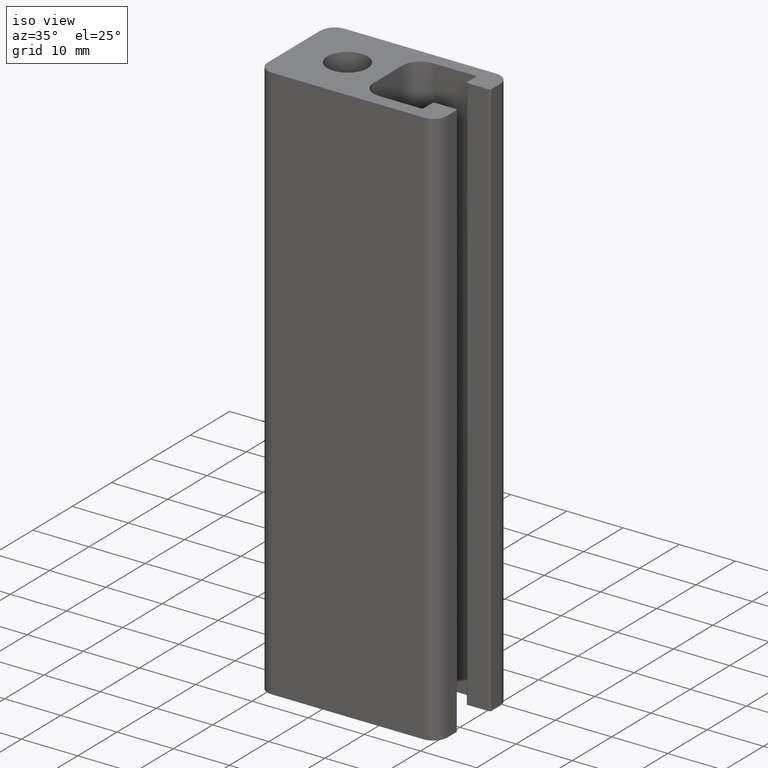
[diagram: clean part render]
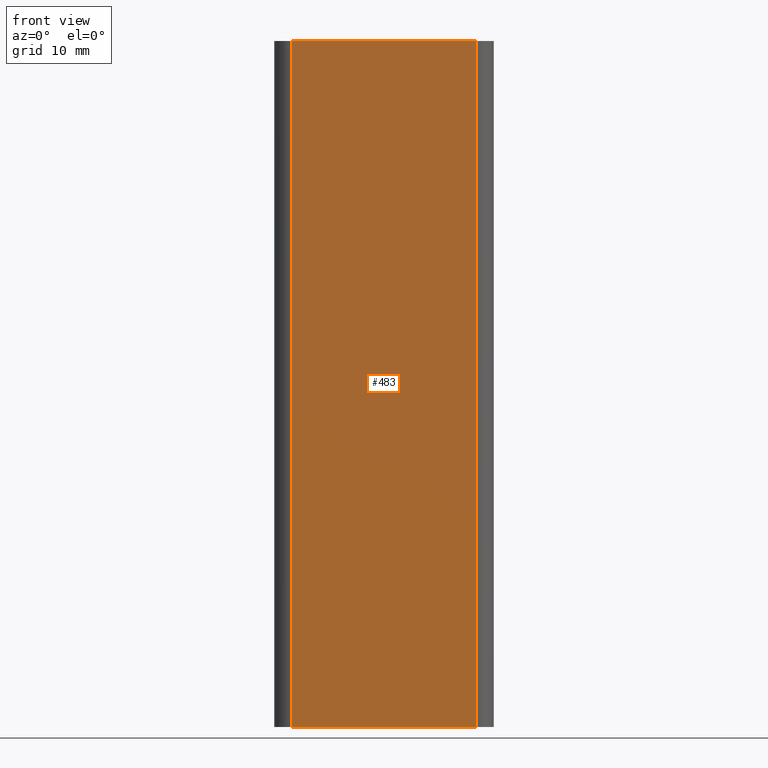
[diagram: tour spotlight — one face highlighted and labeled with its STEP entity id]
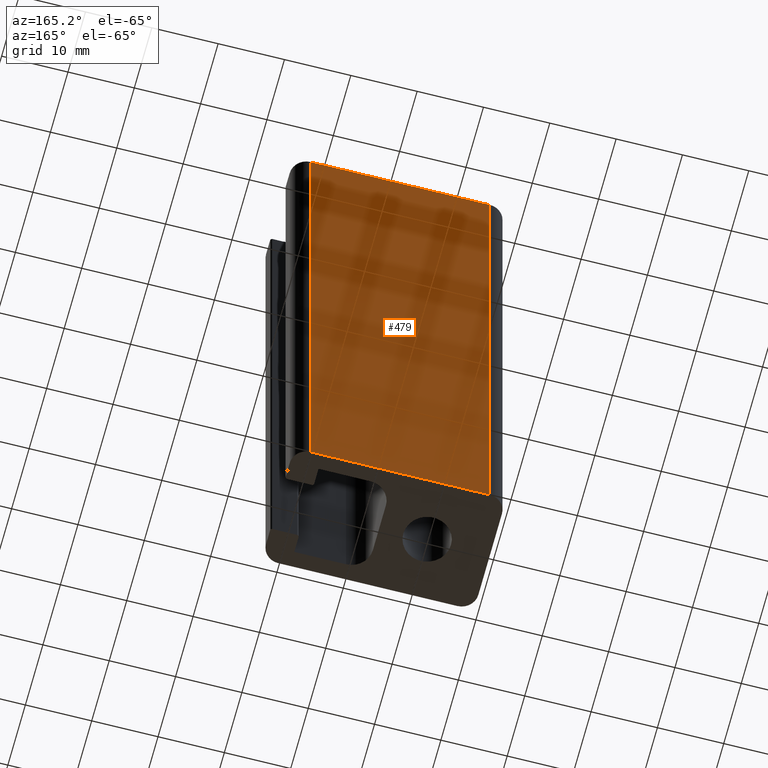
[diagram: tour spotlight — one face highlighted and labeled with its STEP entity id]
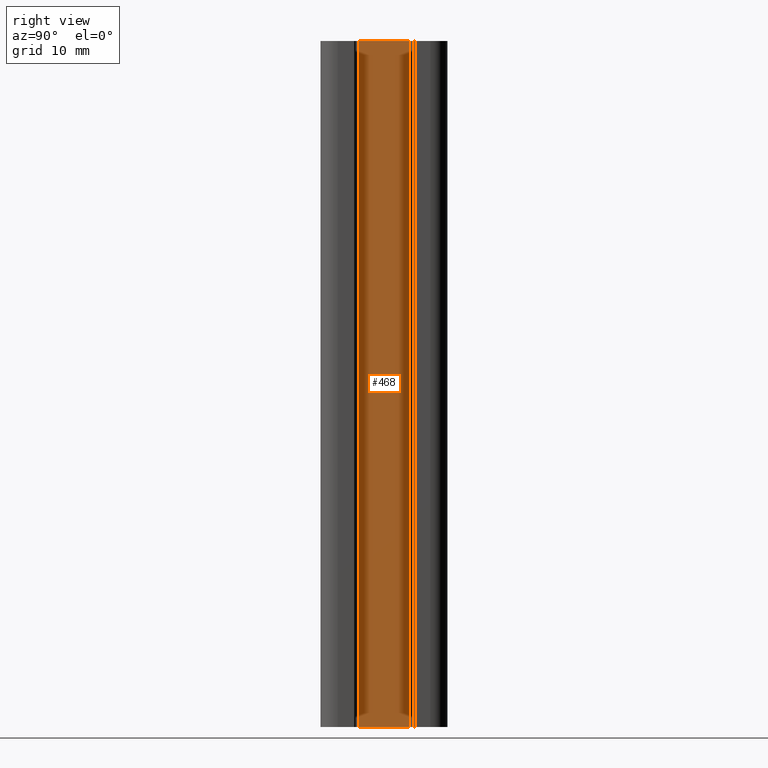
[diagram: tour spotlight — one face highlighted and labeled with its STEP entity id]
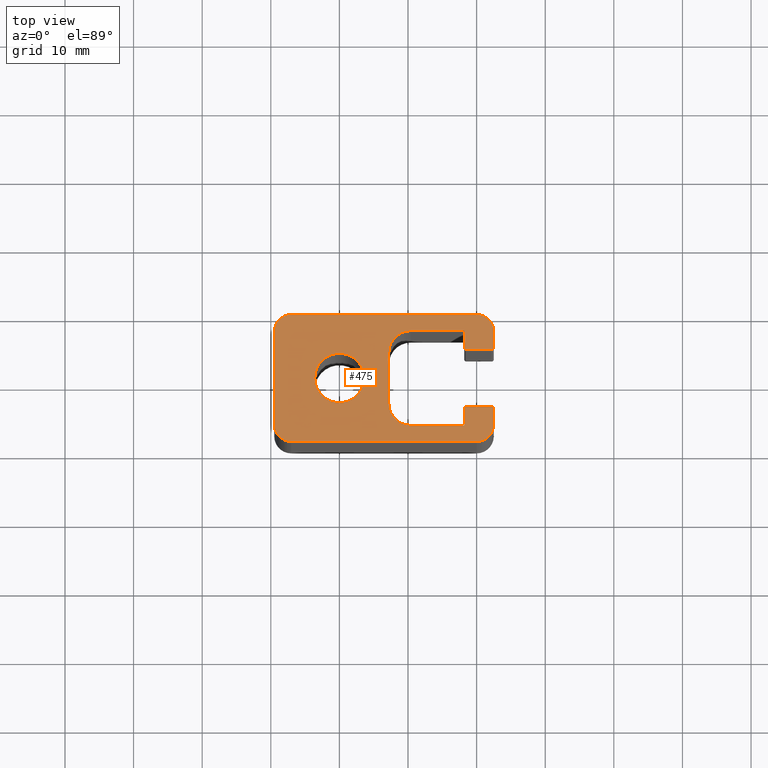
[diagram: tour spotlight — one face highlighted and labeled with its STEP entity id]
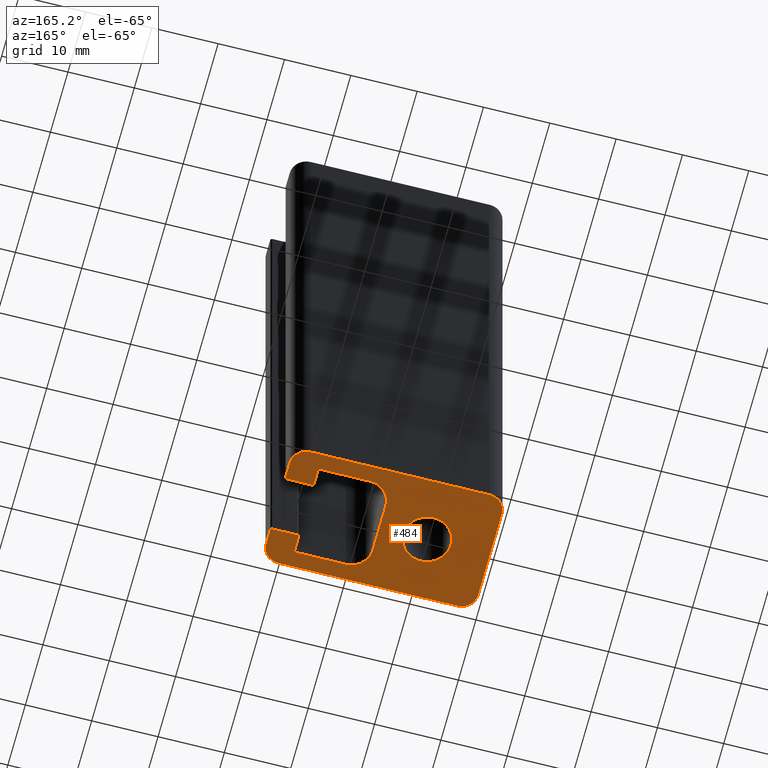
[diagram: tour spotlight — one face highlighted and labeled with its STEP entity id]
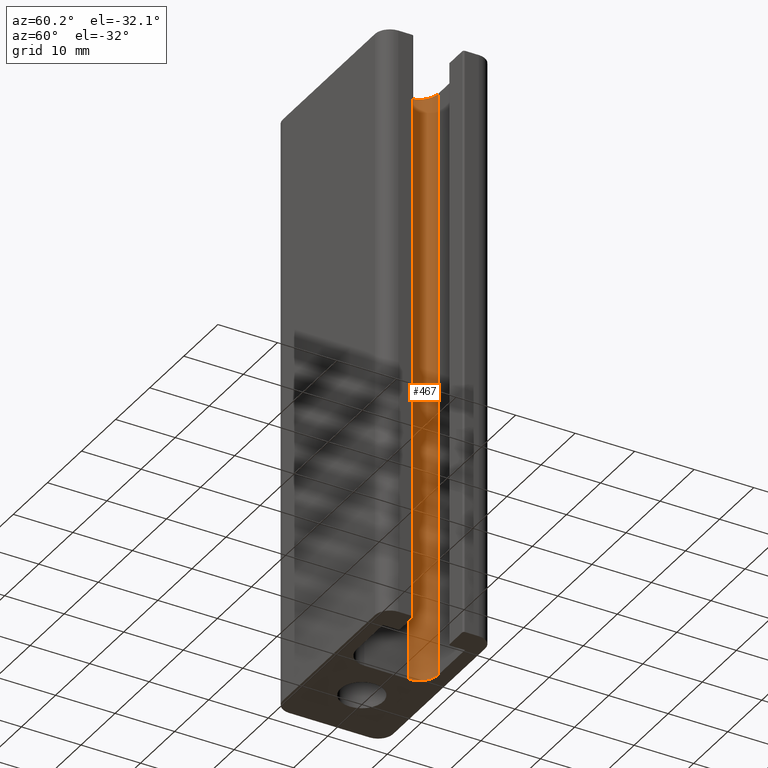
[diagram: tour spotlight — one face highlighted and labeled with its STEP entity id]
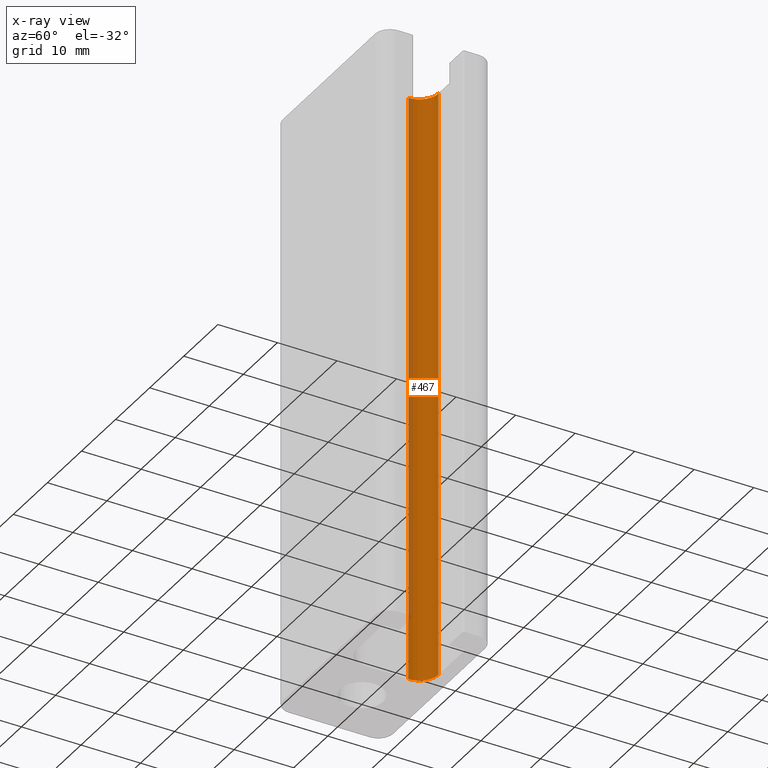
[diagram: x-ray of the same camera — body ghosted, this tour face saturated]
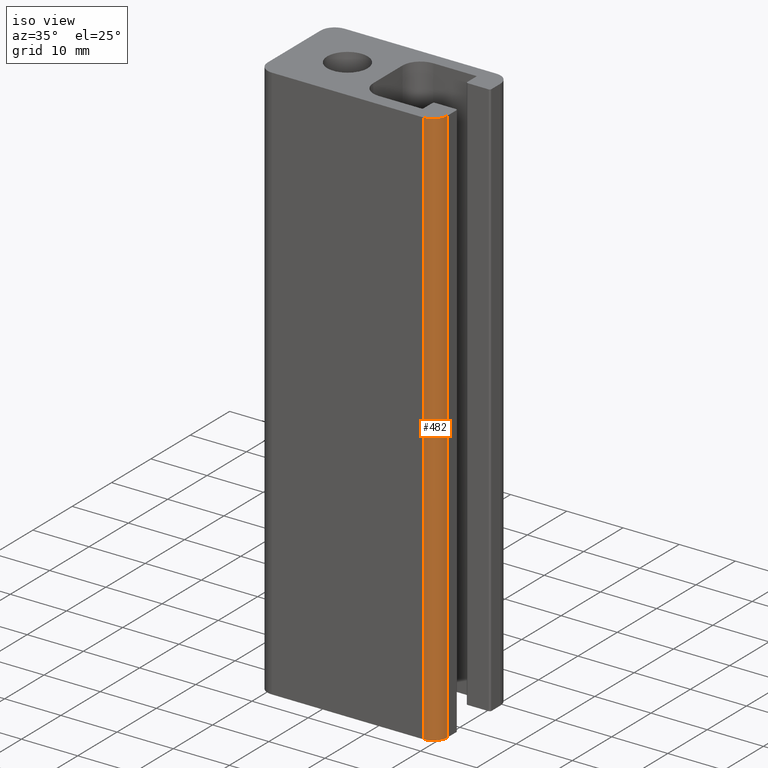
[diagram: tour spotlight — one face highlighted and labeled with its STEP entity id]
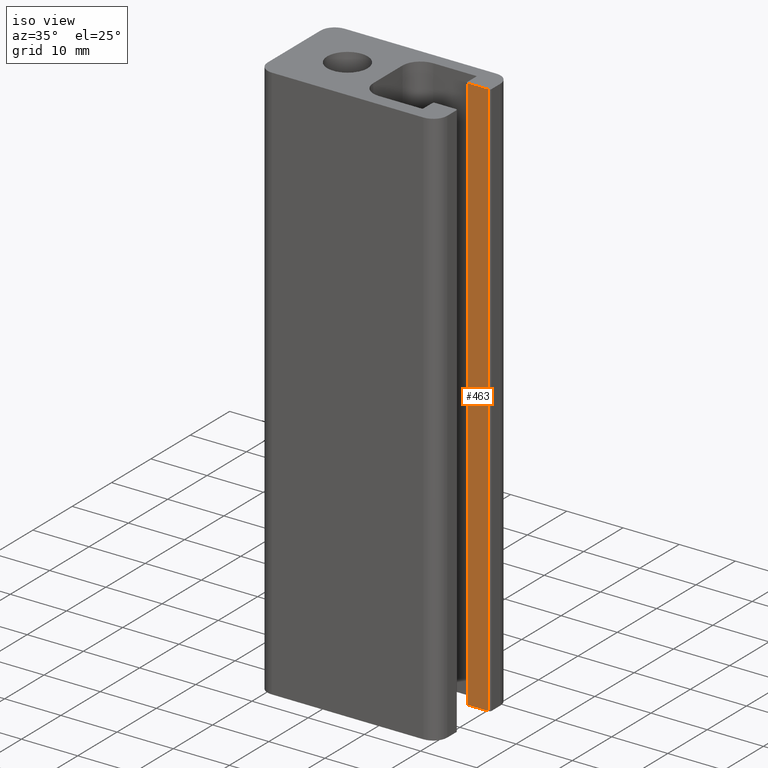
[diagram: tour spotlight — one face highlighted and labeled with its STEP entity id]
A machine part: a face-by-face anatomy tour. The part has 25 B-rep faces; the first image is the clean iso view, then the 8 largest visible faces are spotlighted one at a time (largest first), each with its STEP entity span.

Face 1 — front view, entity #483. In plain terms, the highlighted planar face has unit normal (0, -1, 0).
Definition (entity closure, byte-faithful):
#27=PLANE('',#532);
#62=LINE('',#781,#108);
#65=LINE('',#790,#111);
#73=LINE('',#811,#119);
#74=LINE('',#814,#120);
#108=VECTOR('',#635,27.);
#111=VECTOR('',#644,100.);
#119=VECTOR('',#668,100.);
#120=VECTOR('',#673,27.);
#147=FACE_OUTER_BOUND('',#174,.T.);
#174=EDGE_LOOP('',(#422,#423,#424,#425));
#235=VERTEX_POINT('',#778);
#236=VERTEX_POINT('',#780);
#239=VERTEX_POINT('',#788);
#244=VERTEX_POINT('',#810);
#295=EDGE_CURVE('',#236,#235,#62,.T.);
#300=EDGE_CURVE('',#239,#235,#65,.T.);
#310=EDGE_CURVE('',#244,#236,#73,.T.);
#312=EDGE_CURVE('',#244,#239,#74,.T.);
#422=ORIENTED_EDGE('',*,*,#295,.T.);
#423=ORIENTED_EDGE('',*,*,#300,.F.);
#424=ORIENTED_EDGE('',*,*,#312,.F.);
#425=ORIENTED_EDGE('',*,*,#310,.T.);
#483=ADVANCED_FACE('',(#147),#27,.T.);
#532=AXIS2_PLACEMENT_3D('',#813,#671,#672);
#635=DIRECTION('',(-1.,-1.64477485129653E-16,0.));
#644=DIRECTION('',(0.,0.,1.));
#668=DIRECTION('',(0.,0.,1.));
#671=DIRECTION('center_axis',(1.64477485129653E-16,-1.,0.));
#672=DIRECTION('ref_axis',(1.,1.77635683940025E-16,0.));
#673=DIRECTION('',(-1.,-1.64477485129653E-16,0.));
#778=CARTESIAN_POINT('',(-7.,-9.25,100.));
#780=CARTESIAN_POINT('',(20.,-9.25,100.));
#781=CARTESIAN_POINT('',(-0.249999999999997,-9.25,100.));
#788=CARTESIAN_POINT('',(-7.,-9.25,0.));
#790=CARTESIAN_POINT('',(-7.,-9.25,0.));
#810=CARTESIAN_POINT('',(20.,-9.25,0.));
#811=CARTESIAN_POINT('',(20.,-9.25,0.));
#813=CARTESIAN_POINT('Origin',(-7.,-9.25,0.));
#814=CARTESIAN_POINT('',(-0.249999999999997,-9.25,0.));

Face 2 — auxiliary view, entity #479. In plain terms, the highlighted planar face has unit normal (0, 1, 0).
Definition (entity closure, byte-faithful):
#25=PLANE('',#526);
#60=LINE('',#773,#106);
#68=LINE('',#797,#114);
#69=LINE('',#801,#115);
#70=LINE('',#802,#116);
#106=VECTOR('',#629,27.);
#114=VECTOR('',#651,100.);
#115=VECTOR('',#656,100.);
#116=VECTOR('',#657,27.);
#143=FACE_OUTER_BOUND('',#170,.T.);
#170=EDGE_LOOP('',(#406,#407,#408,#409));
#231=VERTEX_POINT('',#770);
#232=VERTEX_POINT('',#772);
#241=VERTEX_POINT('',#796);
#242=VERTEX_POINT('',#800);
#291=EDGE_CURVE('',#232,#231,#60,.T.);
#303=EDGE_CURVE('',#241,#232,#68,.T.);
#305=EDGE_CURVE('',#242,#231,#69,.T.);
#306=EDGE_CURVE('',#241,#242,#70,.T.);
#406=ORIENTED_EDGE('',*,*,#291,.T.);
#407=ORIENTED_EDGE('',*,*,#305,.F.);
#408=ORIENTED_EDGE('',*,*,#306,.F.);
#409=ORIENTED_EDGE('',*,*,#303,.T.);
#479=ADVANCED_FACE('',(#143),#25,.T.);
#526=AXIS2_PLACEMENT_3D('',#799,#654,#655);
#629=DIRECTION('',(1.,-1.2335811384724E-16,0.));
#651=DIRECTION('',(0.,0.,1.));
#654=DIRECTION('center_axis',(1.2335811384724E-16,1.,0.));
#655=DIRECTION('ref_axis',(-1.,1.77635683940025E-16,0.));
#656=DIRECTION('',(0.,0.,1.));
#657=DIRECTION('',(1.,-1.2335811384724E-16,0.));
#770=CARTESIAN_POINT('',(20.,9.25,100.));
#772=CARTESIAN_POINT('',(-7.,9.25,100.));
#773=CARTESIAN_POINT('',(13.25,9.25,100.));
#796=CARTESIAN_POINT('',(-7.,9.25,0.));
#797=CARTESIAN_POINT('',(-7.,9.25,0.));
#799=CARTESIAN_POINT('Origin',(20.,9.25,0.));
#800=CARTESIAN_POINT('',(20.,9.25,0.));
#801=CARTESIAN_POINT('',(20.,9.25,0.));
#802=CARTESIAN_POINT('',(13.25,9.25,0.));

Face 3 — right view, entity #468. In plain terms, the highlighted planar face has unit normal (-1, 0, 0).
Definition (entity closure, byte-faithful):
#18=PLANE('',#505);
#43=LINE('',#728,#89);
#44=LINE('',#732,#90);
#45=LINE('',#734,#91);
#46=LINE('',#735,#92);
#89=VECTOR('',#584,100.);
#90=VECTOR('',#589,7.4);
#91=VECTOR('',#590,100.);
#92=VECTOR('',#591,7.4);
#132=FACE_OUTER_BOUND('',#158,.T.);
#158=EDGE_LOOP('',(#343,#344,#345,#346));
#217=VERTEX_POINT('',#725);
#218=VERTEX_POINT('',#727);
#219=VERTEX_POINT('',#731);
#220=VERTEX_POINT('',#733);
#268=EDGE_CURVE('',#218,#217,#43,.T.);
#270=EDGE_CURVE('',#219,#217,#44,.T.);
#271=EDGE_CURVE('',#220,#219,#45,.T.);
#272=EDGE_CURVE('',#218,#220,#46,.T.);
#343=ORIENTED_EDGE('',*,*,#270,.F.);
#344=ORIENTED_EDGE('',*,*,#271,.F.);
#345=ORIENTED_EDGE('',*,*,#272,.F.);
#346=ORIENTED_EDGE('',*,*,#268,.T.);
#468=ADVANCED_FACE('',(#132),#18,.F.);
#505=AXIS2_PLACEMENT_3D('',#730,#587,#588);
#584=DIRECTION('',(0.,0.,1.));
#587=DIRECTION('center_axis',(-1.,1.73119776772293E-12,0.));
#588=DIRECTION('ref_axis',(0.,0.,1.));
#589=DIRECTION('',(1.73119776772293E-12,1.,0.));
#590=DIRECTION('',(0.,0.,1.));
#591=DIRECTION('',(-1.73119776772293E-12,-1.,0.));
#725=CARTESIAN_POINT('',(7.20000000001281,3.7,100.));
#727=CARTESIAN_POINT('',(7.20000000001281,3.7,0.));
#728=CARTESIAN_POINT('',(7.20000000001281,3.7,0.));
#730=CARTESIAN_POINT('Origin',(7.2,-3.7,0.));
#731=CARTESIAN_POINT('',(7.2,-3.7,100.));
#732=CARTESIAN_POINT('',(7.2000000000032,-1.85000000000061,100.));
#733=CARTESIAN_POINT('',(7.2,-3.7,0.));
#734=CARTESIAN_POINT('',(7.2,-3.7,0.));
#735=CARTESIAN_POINT('',(7.2000000000032,-1.85000000000061,0.));

Face 4 — top view, entity #475. In plain terms, the highlighted planar face has unit normal (0, 0, 1).
Definition (entity closure, byte-faithful):
#23=PLANE('',#516);
#33=LINE('',#702,#79);
#37=LINE('',#714,#83);
#40=LINE('',#720,#86);
#44=LINE('',#732,#90);
#48=LINE('',#744,#94);
#51=LINE('',#750,#97);
#55=LINE('',#761,#101);
#59=LINE('',#768,#105);
#60=LINE('',#773,#106);
#61=LINE('',#777,#107);
#62=LINE('',#781,#108);
#63=LINE('',#784,#109);
#79=VECTOR('',#560,3.7);
#83=VECTOR('',#572,2.45);
#86=VECTOR('',#577,7.8);
#90=VECTOR('',#589,7.4);
#94=VECTOR('',#601,7.8);
#97=VECTOR('',#606,2.45);
#101=VECTOR('',#618,3.7);
#105=VECTOR('',#624,2.3);
#106=VECTOR('',#629,27.);
#107=VECTOR('',#632,13.5);
#108=VECTOR('',#635,27.);
#109=VECTOR('',#638,2.30000000000058);
#122=FACE_BOUND('',#166,.T.);
#139=FACE_OUTER_BOUND('',#165,.T.);
#165=EDGE_LOOP('',(#371,#372,#373,#374,#375,#376,#377,#378,#379,#380,#381,
#382,#383,#384,#385,#386,#387,#388,#389,#390,#391,#392));
#166=EDGE_LOOP('',(#393));
#177=CIRCLE('',#488,3.6);
#179=CIRCLE('',#491,0.299999999999404);
#181=CIRCLE('',#494,0.299999999999407);
#183=CIRCLE('',#498,0.299999999999432);
#185=CIRCLE('',#503,3.19999999999359);
#187=CIRCLE('',#507,3.19999999999361);
#189=CIRCLE('',#512,0.299999999999434);
#191=CIRCLE('',#517,2.5);
#192=CIRCLE('',#518,2.5);
#193=CIRCLE('',#519,2.5);
#194=CIRCLE('',#520,2.5);
#199=VERTEX_POINT('',#678);
#201=VERTEX_POINT('',#683);
#202=VERTEX_POINT('',#684);
#205=VERTEX_POINT('',#692);
#206=VERTEX_POINT('',#693);
#209=VERTEX_POINT('',#701);
#211=VERTEX_POINT('',#707);
#213=VERTEX_POINT('',#713);
#215=VERTEX_POINT('',#719);
#217=VERTEX_POINT('',#725);
#219=VERTEX_POINT('',#731);
#221=VERTEX_POINT('',#737);
#223=VERTEX_POINT('',#743);
#225=VERTEX_POINT('',#749);
#227=VERTEX_POINT('',#755);
#230=VERTEX_POINT('',#766);
#231=VERTEX_POINT('',#770);
#232=VERTEX_POINT('',#772);
#233=VERTEX_POINT('',#774);
#234=VERTEX_POINT('',#776);
#235=VERTEX_POINT('',#778);
#236=VERTEX_POINT('',#780);
#237=VERTEX_POINT('',#782);
#245=EDGE_CURVE('',#199,#199,#177,.T.);
#247=EDGE_CURVE('',#201,#202,#179,.T.);
#251=EDGE_CURVE('',#205,#206,#181,.T.);
#255=EDGE_CURVE('',#209,#205,#33,.T.);
#258=EDGE_CURVE('',#211,#209,#183,.T.);
#261=EDGE_CURVE('',#213,#211,#37,.T.);
#264=EDGE_CURVE('',#215,#213,#40,.T.);
#267=EDGE_CURVE('',#217,#215,#185,.T.);
#270=EDGE_CURVE('',#219,#217,#44,.T.);
#273=EDGE_CURVE('',#221,#219,#187,.T.);
#276=EDGE_CURVE('',#223,#221,#48,.T.);
#279=EDGE_CURVE('',#225,#223,#51,.T.);
#282=EDGE_CURVE('',#227,#225,#189,.T.);
#285=EDGE_CURVE('',#202,#227,#55,.T.);
#289=EDGE_CURVE('',#230,#206,#59,.T.);
#290=EDGE_CURVE('',#231,#230,#191,.T.);
#291=EDGE_CURVE('',#232,#231,#60,.T.);
#292=EDGE_CURVE('',#233,#232,#192,.T.);
#293=EDGE_CURVE('',#234,#233,#61,.T.);
#294=EDGE_CURVE('',#235,#234,#193,.T.);
#295=EDGE_CURVE('',#236,#235,#62,.T.);
#296=EDGE_CURVE('',#237,#236,#194,.T.);
#297=EDGE_CURVE('',#201,#237,#63,.T.);
#371=ORIENTED_EDGE('',*,*,#247,.T.);
#372=ORIENTED_EDGE('',*,*,#285,.T.);
#373=ORIENTED_EDGE('',*,*,#282,.T.);
#374=ORIENTED_EDGE('',*,*,#279,.T.);
#375=ORIENTED_EDGE('',*,*,#276,.T.);
#376=ORIENTED_EDGE('',*,*,#273,.T.);
#377=ORIENTED_EDGE('',*,*,#270,.T.);
#378=ORIENTED_EDGE('',*,*,#267,.T.);
#379=ORIENTED_EDGE('',*,*,#264,.T.);
#380=ORIENTED_EDGE('',*,*,#261,.T.);
#381=ORIENTED_EDGE('',*,*,#258,.T.);
#382=ORIENTED_EDGE('',*,*,#255,.T.);
#383=ORIENTED_EDGE('',*,*,#251,.T.);
#384=ORIENTED_EDGE('',*,*,#289,.F.);
#385=ORIENTED_EDGE('',*,*,#290,.F.);
#386=ORIENTED_EDGE('',*,*,#291,.F.);
#387=ORIENTED_EDGE('',*,*,#292,.F.);
#388=ORIENTED_EDGE('',*,*,#293,.F.);
#389=ORIENTED_EDGE('',*,*,#294,.F.);
#390=ORIENTED_EDGE('',*,*,#295,.F.);
#391=ORIENTED_EDGE('',*,*,#296,.F.);
#392=ORIENTED_EDGE('',*,*,#297,.F.);
#393=ORIENTED_EDGE('',*,*,#245,.T.);
#475=ADVANCED_FACE('',(#139,#122),#23,.T.);
#488=AXIS2_PLACEMENT_3D('',#679,#538,#539);
#491=AXIS2_PLACEMENT_3D('',#685,#544,#545);
#494=AXIS2_PLACEMENT_3D('',#694,#552,#553);
#498=AXIS2_PLACEMENT_3D('',#708,#565,#566);
#503=AXIS2_PLACEMENT_3D('',#726,#582,#583);
#507=AXIS2_PLACEMENT_3D('',#738,#594,#595);
#512=AXIS2_PLACEMENT_3D('',#756,#611,#612);
#516=AXIS2_PLACEMENT_3D('',#769,#625,#626);
#517=AXIS2_PLACEMENT_3D('',#771,#627,#628);
#518=AXIS2_PLACEMENT_3D('',#775,#630,#631);
#519=AXIS2_PLACEMENT_3D('',#779,#633,#634);
#520=AXIS2_PLACEMENT_3D('',#783,#636,#637);
#538=DIRECTION('center_axis',(0.,0.,-1.));
#539=DIRECTION('ref_axis',(-1.,0.,0.));
#544=DIRECTION('center_axis',(0.,0.,1.));
#545=DIRECTION('ref_axis',(-1.,2.22044604925467E-14,0.));
#552=DIRECTION('center_axis',(0.,0.,1.));
#553=DIRECTION('ref_axis',(1.98359847066754E-12,1.,0.));
#560=DIRECTION('',(1.,3.20464375756667E-13,0.));
#565=DIRECTION('center_axis',(0.,0.,1.));
#566=DIRECTION('ref_axis',(1.,-1.88552877015863E-12,0.));
#572=DIRECTION('',(4.62215300048024E-13,-1.,0.));
#577=DIRECTION('',(1.,-2.84672570416707E-16,0.));
#582=DIRECTION('center_axis',(0.,0.,-1.));
#583=DIRECTION('ref_axis',(-2.00117700189085E-12,1.,0.));
#589=DIRECTION('',(1.73119776772293E-12,1.,0.));
#594=DIRECTION('center_axis',(0.,0.,-1.));
#595=DIRECTION('ref_axis',(-1.,-1.99701366554849E-12,0.));
#601=DIRECTION('',(-1.,1.63885998788898E-12,0.));
#606=DIRECTION('',(-9.06304509898087E-16,-1.,0.));
#611=DIRECTION('center_axis',(0.,0.,1.));
#612=DIRECTION('ref_axis',(-1.87997765503548E-12,-1.,0.));
#618=DIRECTION('',(-1.,-3.05311331771918E-13,0.));
#624=DIRECTION('',(0.,-1.,0.));
#625=DIRECTION('center_axis',(0.,0.,1.));
#626=DIRECTION('ref_axis',(1.,0.,0.));
#627=DIRECTION('center_axis',(0.,0.,-1.));
#628=DIRECTION('ref_axis',(1.,0.,0.));
#629=DIRECTION('',(1.,-1.2335811384724E-16,0.));
#630=DIRECTION('center_axis',(0.,0.,-1.));
#631=DIRECTION('ref_axis',(0.,1.,0.));
#632=DIRECTION('',(0.,1.,0.));
#633=DIRECTION('center_axis',(0.,0.,-1.));
#634=DIRECTION('ref_axis',(-1.,0.,0.));
#635=DIRECTION('',(-1.,-1.64477485129653E-16,0.));
#636=DIRECTION('center_axis',(0.,0.,-1.));
#637=DIRECTION('ref_axis',(0.,-1.,0.));
#638=DIRECTION('',(0.,-1.,0.));
#678=CARTESIAN_POINT('',(3.6,-4.40872847693047E-16,100.));
#679=CARTESIAN_POINT('Origin',(0.,0.,100.));
#683=CARTESIAN_POINT('',(22.4999999999988,-4.44999999999942,100.));
#684=CARTESIAN_POINT('',(22.2,-4.15000000000001,100.));
#685=CARTESIAN_POINT('Origin',(22.1999999999994,-4.44999999999941,100.));
#692=CARTESIAN_POINT('',(22.2,4.15000000000118,100.));
#693=CARTESIAN_POINT('',(22.4999999999988,4.45,100.));
#694=CARTESIAN_POINT('Origin',(22.2000000000006,4.45000000000059,100.));
#701=CARTESIAN_POINT('',(18.5,4.15,100.));
#702=CARTESIAN_POINT('',(12.4999999999993,4.14999999999808,100.));
#707=CARTESIAN_POINT('',(18.2000000000011,4.45,100.));
#708=CARTESIAN_POINT('Origin',(18.5000000000006,4.44999999999943,100.));
#713=CARTESIAN_POINT('',(18.2,6.9,100.));
#714=CARTESIAN_POINT('',(18.2000000000016,3.4500000000027,100.));
#719=CARTESIAN_POINT('',(10.4,6.9,100.));
#720=CARTESIAN_POINT('',(8.45,6.9,100.));
#725=CARTESIAN_POINT('',(7.20000000001281,3.7,100.));
#726=CARTESIAN_POINT('Origin',(10.4000000000064,3.7000000000064,100.));
#731=CARTESIAN_POINT('',(7.2,-3.7,100.));
#732=CARTESIAN_POINT('',(7.2000000000032,-1.85000000000061,100.));
#737=CARTESIAN_POINT('',(10.4,-6.89999999998722,100.));
#738=CARTESIAN_POINT('Origin',(10.3999999999936,-3.69999999999361,100.));
#743=CARTESIAN_POINT('',(18.2,-6.9,100.));
#744=CARTESIAN_POINT('',(12.3499999999943,-6.89999999999042,100.));
#749=CARTESIAN_POINT('',(18.2,-4.45,100.));
#750=CARTESIAN_POINT('',(18.2,-2.22500000000001,100.));
#755=CARTESIAN_POINT('',(18.5,-4.15000000000114,100.));
#756=CARTESIAN_POINT('Origin',(18.4999999999994,-4.45000000000057,100.));
#761=CARTESIAN_POINT('',(14.3500000000006,-4.1500000000024,100.));
#766=CARTESIAN_POINT('',(22.5,6.75,100.));
#768=CARTESIAN_POINT('',(22.5,-3.375,100.));
#769=CARTESIAN_POINT('Origin',(6.5,0.,100.));
#770=CARTESIAN_POINT('',(20.,9.25,100.));
#771=CARTESIAN_POINT('Origin',(20.,6.75,100.));
#772=CARTESIAN_POINT('',(-7.,9.25,100.));
#773=CARTESIAN_POINT('',(13.25,9.25,100.));
#774=CARTESIAN_POINT('',(-9.5,6.75,100.));
#775=CARTESIAN_POINT('Origin',(-7.,6.75,100.));
#776=CARTESIAN_POINT('',(-9.5,-6.75,100.));
#777=CARTESIAN_POINT('',(-9.5,3.375,100.));
#778=CARTESIAN_POINT('',(-7.,-9.25,100.));
#779=CARTESIAN_POINT('Origin',(-7.,-6.75,100.));
#780=CARTESIAN_POINT('',(20.,-9.25,100.));
#781=CARTESIAN_POINT('',(-0.249999999999997,-9.25,100.));
#782=CARTESIAN_POINT('',(22.5,-6.75,100.));
#783=CARTESIAN_POINT('Origin',(20.,-6.75,100.));
#784=CARTESIAN_POINT('',(22.5,-3.375,100.));

Face 5 — auxiliary view, entity #484. In plain terms, the highlighted planar face has unit normal (0, 0, 1).
Definition (entity closure, byte-faithful):
#28=PLANE('',#533);
#35=LINE('',#705,#81);
#39=LINE('',#717,#85);
#42=LINE('',#723,#88);
#46=LINE('',#735,#92);
#50=LINE('',#747,#96);
#53=LINE('',#753,#99);
#56=LINE('',#762,#102);
#57=LINE('',#765,#103);
#67=LINE('',#794,#113);
#70=LINE('',#802,#116);
#72=LINE('',#808,#118);
#74=LINE('',#814,#120);
#81=VECTOR('',#562,3.7);
#85=VECTOR('',#574,2.45);
#88=VECTOR('',#579,7.8);
#92=VECTOR('',#591,7.4);
#96=VECTOR('',#603,7.8);
#99=VECTOR('',#608,2.45);
#102=VECTOR('',#619,3.7);
#103=VECTOR('',#622,2.3);
#113=VECTOR('',#648,13.5);
#116=VECTOR('',#657,27.);
#118=VECTOR('',#665,2.30000000000058);
#120=VECTOR('',#673,27.);
#123=FACE_BOUND('',#176,.T.);
#148=FACE_OUTER_BOUND('',#175,.T.);
#175=EDGE_LOOP('',(#426,#427,#428,#429,#430,#431,#432,#433,#434,#435,#436,
#437,#438,#439,#440,#441,#442,#443,#444,#445,#446,#447));
#176=EDGE_LOOP('',(#448));
#178=CIRCLE('',#489,3.6);
#180=CIRCLE('',#492,0.299999999999404);
#182=CIRCLE('',#495,0.299999999999407);
#184=CIRCLE('',#499,0.299999999999432);
#186=CIRCLE('',#504,3.19999999999359);
#188=CIRCLE('',#508,3.19999999999361);
#190=CIRCLE('',#513,0.299999999999434);
#195=CIRCLE('',#522,2.5);
#196=CIRCLE('',#525,2.5);
#197=CIRCLE('',#528,2.5);
#198=CIRCLE('',#531,2.5);
#200=VERTEX_POINT('',#680);
#203=VERTEX_POINT('',#686);
#204=VERTEX_POINT('',#688);
#207=VERTEX_POINT('',#695);
#208=VERTEX_POINT('',#697);
#210=VERTEX_POINT('',#703);
#212=VERTEX_POINT('',#709);
#214=VERTEX_POINT('',#715);
#216=VERTEX_POINT('',#721);
#218=VERTEX_POINT('',#727);
#220=VERTEX_POINT('',#733);
#222=VERTEX_POINT('',#739);
#224=VERTEX_POINT('',#745);
#226=VERTEX_POINT('',#751);
#228=VERTEX_POINT('',#757);
#229=VERTEX_POINT('',#764);
#238=VERTEX_POINT('',#786);
#239=VERTEX_POINT('',#788);
#240=VERTEX_POINT('',#792);
#241=VERTEX_POINT('',#796);
#242=VERTEX_POINT('',#800);
#243=VERTEX_POINT('',#806);
#244=VERTEX_POINT('',#810);
#246=EDGE_CURVE('',#200,#200,#178,.T.);
#249=EDGE_CURVE('',#204,#203,#180,.T.);
#253=EDGE_CURVE('',#208,#207,#182,.T.);
#257=EDGE_CURVE('',#207,#210,#35,.T.);
#260=EDGE_CURVE('',#210,#212,#184,.T.);
#263=EDGE_CURVE('',#212,#214,#39,.T.);
#266=EDGE_CURVE('',#214,#216,#42,.T.);
#269=EDGE_CURVE('',#216,#218,#186,.T.);
#272=EDGE_CURVE('',#218,#220,#46,.T.);
#275=EDGE_CURVE('',#220,#222,#188,.T.);
#278=EDGE_CURVE('',#222,#224,#50,.T.);
#281=EDGE_CURVE('',#224,#226,#53,.T.);
#284=EDGE_CURVE('',#226,#228,#190,.T.);
#286=EDGE_CURVE('',#228,#204,#56,.T.);
#287=EDGE_CURVE('',#229,#208,#57,.T.);
#299=EDGE_CURVE('',#239,#238,#195,.T.);
#302=EDGE_CURVE('',#238,#240,#67,.T.);
#304=EDGE_CURVE('',#240,#241,#196,.T.);
#306=EDGE_CURVE('',#241,#242,#70,.T.);
#307=EDGE_CURVE('',#242,#229,#197,.T.);
#309=EDGE_CURVE('',#203,#243,#72,.T.);
#311=EDGE_CURVE('',#243,#244,#198,.T.);
#312=EDGE_CURVE('',#244,#239,#74,.T.);
#426=ORIENTED_EDGE('',*,*,#249,.T.);
#427=ORIENTED_EDGE('',*,*,#309,.T.);
#428=ORIENTED_EDGE('',*,*,#311,.T.);
#429=ORIENTED_EDGE('',*,*,#312,.T.);
#430=ORIENTED_EDGE('',*,*,#299,.T.);
#431=ORIENTED_EDGE('',*,*,#302,.T.);
#432=ORIENTED_EDGE('',*,*,#304,.T.);
#433=ORIENTED_EDGE('',*,*,#306,.T.);
#434=ORIENTED_EDGE('',*,*,#307,.T.);
#435=ORIENTED_EDGE('',*,*,#287,.T.);
#436=ORIENTED_EDGE('',*,*,#253,.T.);
#437=ORIENTED_EDGE('',*,*,#257,.T.);
#438=ORIENTED_EDGE('',*,*,#260,.T.);
#439=ORIENTED_EDGE('',*,*,#263,.T.);
#440=ORIENTED_EDGE('',*,*,#266,.T.);
#441=ORIENTED_EDGE('',*,*,#269,.T.);
#442=ORIENTED_EDGE('',*,*,#272,.T.);
#443=ORIENTED_EDGE('',*,*,#275,.T.);
#444=ORIENTED_EDGE('',*,*,#278,.T.);
#445=ORIENTED_EDGE('',*,*,#281,.T.);
#446=ORIENTED_EDGE('',*,*,#284,.T.);
#447=ORIENTED_EDGE('',*,*,#286,.T.);
#448=ORIENTED_EDGE('',*,*,#246,.T.);
#484=ADVANCED_FACE('',(#148,#123),#28,.F.);
#489=AXIS2_PLACEMENT_3D('',#681,#540,#541);
#492=AXIS2_PLACEMENT_3D('',#689,#547,#548);
#495=AXIS2_PLACEMENT_3D('',#698,#555,#556);
#499=AXIS2_PLACEMENT_3D('',#711,#568,#569);
#504=AXIS2_PLACEMENT_3D('',#729,#585,#586);
#508=AXIS2_PLACEMENT_3D('',#741,#597,#598);
#513=AXIS2_PLACEMENT_3D('',#759,#614,#615);
#522=AXIS2_PLACEMENT_3D('',#789,#642,#643);
#525=AXIS2_PLACEMENT_3D('',#798,#652,#653);
#528=AXIS2_PLACEMENT_3D('',#804,#660,#661);
#531=AXIS2_PLACEMENT_3D('',#812,#669,#670);
#533=AXIS2_PLACEMENT_3D('',#815,#674,#675);
#540=DIRECTION('center_axis',(0.,0.,1.));
#541=DIRECTION('ref_axis',(-1.,0.,0.));
#547=DIRECTION('center_axis',(0.,0.,-1.));
#548=DIRECTION('ref_axis',(-1.,2.22044604925467E-14,0.));
#555=DIRECTION('center_axis',(0.,0.,-1.));
#556=DIRECTION('ref_axis',(1.98359847066754E-12,1.,0.));
#562=DIRECTION('',(-1.,-3.20464375756667E-13,0.));
#568=DIRECTION('center_axis',(0.,0.,-1.));
#569=DIRECTION('ref_axis',(1.,-1.88552877015863E-12,0.));
#574=DIRECTION('',(-4.62215300048024E-13,1.,0.));
#579=DIRECTION('',(-1.,2.84672570416707E-16,0.));
#585=DIRECTION('center_axis',(0.,0.,1.));
#586=DIRECTION('ref_axis',(-2.00117700189085E-12,1.,0.));
#591=DIRECTION('',(-1.73119776772293E-12,-1.,0.));
#597=DIRECTION('center_axis',(0.,0.,1.));
#598=DIRECTION('ref_axis',(-1.,-1.99701366554849E-12,0.));
#603=DIRECTION('',(1.,-1.63885998788898E-12,0.));
#608=DIRECTION('',(9.06304509898087E-16,1.,0.));
#614=DIRECTION('center_axis',(0.,0.,-1.));
#615=DIRECTION('ref_axis',(-1.87997765503548E-12,-1.,0.));
#619=DIRECTION('',(1.,3.05311331771918E-13,0.));
#622=DIRECTION('',(0.,-1.,0.));
#642=DIRECTION('center_axis',(0.,0.,-1.));
#643=DIRECTION('ref_axis',(-1.,0.,0.));
#648=DIRECTION('',(0.,1.,0.));
#652=DIRECTION('center_axis',(0.,0.,-1.));
#653=DIRECTION('ref_axis',(0.,1.,0.));
#657=DIRECTION('',(1.,-1.2335811384724E-16,0.));
#660=DIRECTION('center_axis',(0.,0.,-1.));
#661=DIRECTION('ref_axis',(1.,0.,0.));
#665=DIRECTION('',(0.,-1.,0.));
#669=DIRECTION('center_axis',(0.,0.,-1.));
#670=DIRECTION('ref_axis',(0.,-1.,0.));
#673=DIRECTION('',(-1.,-1.64477485129653E-16,0.));
#674=DIRECTION('center_axis',(0.,0.,1.));
#675=DIRECTION('ref_axis',(1.,0.,0.));
#680=CARTESIAN_POINT('',(3.6,4.40872847693047E-16,0.));
#681=CARTESIAN_POINT('Origin',(0.,0.,0.));
#686=CARTESIAN_POINT('',(22.4999999999988,-4.44999999999942,0.));
#688=CARTESIAN_POINT('',(22.2,-4.15000000000001,0.));
#689=CARTESIAN_POINT('Origin',(22.1999999999994,-4.44999999999941,0.));
#695=CARTESIAN_POINT('',(22.2,4.15000000000118,0.));
#697=CARTESIAN_POINT('',(22.4999999999988,4.45,0.));
#698=CARTESIAN_POINT('Origin',(22.2000000000006,4.45000000000059,0.));
#703=CARTESIAN_POINT('',(18.5,4.15,0.));
#705=CARTESIAN_POINT('',(12.4999999999993,4.14999999999808,0.));
#709=CARTESIAN_POINT('',(18.2000000000011,4.45,0.));
#711=CARTESIAN_POINT('Origin',(18.5000000000006,4.44999999999943,0.));
#715=CARTESIAN_POINT('',(18.2,6.9,0.));
#717=CARTESIAN_POINT('',(18.2000000000016,3.4500000000027,0.));
#721=CARTESIAN_POINT('',(10.4,6.9,0.));
#723=CARTESIAN_POINT('',(8.45,6.9,0.));
#727=CARTESIAN_POINT('',(7.20000000001281,3.7,0.));
#729=CARTESIAN_POINT('Origin',(10.4000000000064,3.7000000000064,0.));
#733=CARTESIAN_POINT('',(7.2,-3.7,0.));
#735=CARTESIAN_POINT('',(7.2000000000032,-1.85000000000061,0.));
#739=CARTESIAN_POINT('',(10.4,-6.89999999998722,0.));
#741=CARTESIAN_POINT('Origin',(10.3999999999936,-3.69999999999361,0.));
#745=CARTESIAN_POINT('',(18.2,-6.9,0.));
#747=CARTESIAN_POINT('',(12.3499999999943,-6.89999999999042,0.));
#751=CARTESIAN_POINT('',(18.2,-4.45,0.));
#753=CARTESIAN_POINT('',(18.2,-2.22500000000001,0.));
#757=CARTESIAN_POINT('',(18.5,-4.15000000000114,0.));
#759=CARTESIAN_POINT('Origin',(18.4999999999994,-4.45000000000057,0.));
#762=CARTESIAN_POINT('',(14.3500000000006,-4.1500000000024,0.));
#764=CARTESIAN_POINT('',(22.5,6.75,0.));
#765=CARTESIAN_POINT('',(22.5,-3.375,0.));
#786=CARTESIAN_POINT('',(-9.5,-6.75,0.));
#788=CARTESIAN_POINT('',(-7.,-9.25,0.));
#789=CARTESIAN_POINT('Origin',(-7.,-6.75,0.));
#792=CARTESIAN_POINT('',(-9.5,6.75,0.));
#794=CARTESIAN_POINT('',(-9.5,3.375,0.));
#796=CARTESIAN_POINT('',(-7.,9.25,0.));
#798=CARTESIAN_POINT('Origin',(-7.,6.75,0.));
#800=CARTESIAN_POINT('',(20.,9.25,0.));
#802=CARTESIAN_POINT('',(13.25,9.25,0.));
#804=CARTESIAN_POINT('Origin',(20.,6.75,0.));
#806=CARTESIAN_POINT('',(22.5,-6.75,0.));
#808=CARTESIAN_POINT('',(22.5,-3.375,0.));
#810=CARTESIAN_POINT('',(20.,-9.25,0.));
#812=CARTESIAN_POINT('Origin',(20.,-6.75,0.));
#814=CARTESIAN_POINT('',(-0.249999999999997,-9.25,0.));
#815=CARTESIAN_POINT('Origin',(6.5,0.,0.));

Face 6 — auxiliary view, entity #467. An x-ray twin of the same camera follows (body ghosted, this face saturated) — the face is partly hidden behind the body. In plain terms, the highlighted cylindrical surface (edge-blend (fillet) strip) has radius 3.2 mm, axis along (0, 0, 1).
Definition (entity closure, byte-faithful):
#41=LINE('',#722,#87);
#43=LINE('',#728,#89);
#87=VECTOR('',#578,100.);
#89=VECTOR('',#584,100.);
#131=FACE_OUTER_BOUND('',#157,.T.);
#157=EDGE_LOOP('',(#339,#340,#341,#342));
#185=CIRCLE('',#503,3.19999999999359);
#186=CIRCLE('',#504,3.19999999999359);
#215=VERTEX_POINT('',#719);
#216=VERTEX_POINT('',#721);
#217=VERTEX_POINT('',#725);
#218=VERTEX_POINT('',#727);
#265=EDGE_CURVE('',#216,#215,#41,.T.);
#267=EDGE_CURVE('',#217,#215,#185,.T.);
#268=EDGE_CURVE('',#218,#217,#43,.T.);
#269=EDGE_CURVE('',#216,#218,#186,.T.);
#339=ORIENTED_EDGE('',*,*,#267,.F.);
#340=ORIENTED_EDGE('',*,*,#268,.F.);
#341=ORIENTED_EDGE('',*,*,#269,.F.);
#342=ORIENTED_EDGE('',*,*,#265,.T.);
#453=CYLINDRICAL_SURFACE('',#502,3.19999999999359);
#467=ADVANCED_FACE('',(#131),#453,.F.);
#502=AXIS2_PLACEMENT_3D('',#724,#580,#581);
#503=AXIS2_PLACEMENT_3D('',#726,#582,#583);
#504=AXIS2_PLACEMENT_3D('',#729,#585,#586);
#578=DIRECTION('',(0.,0.,1.));
#580=DIRECTION('center_axis',(0.,0.,1.));
#581=DIRECTION('ref_axis',(-2.00117700189085E-12,1.,0.));
#582=DIRECTION('center_axis',(0.,0.,-1.));
#583=DIRECTION('ref_axis',(-2.00117700189085E-12,1.,0.));
#584=DIRECTION('',(0.,0.,1.));
#585=DIRECTION('center_axis',(0.,0.,1.));
#586=DIRECTION('ref_axis',(-2.00117700189085E-12,1.,0.));
#719=CARTESIAN_POINT('',(10.4,6.9,100.));
#721=CARTESIAN_POINT('',(10.4,6.9,0.));
#722=CARTESIAN_POINT('',(10.4,6.9,0.));
#724=CARTESIAN_POINT('Origin',(10.4000000000064,3.7000000000064,0.));
#725=CARTESIAN_POINT('',(7.20000000001281,3.7,100.));
#726=CARTESIAN_POINT('Origin',(10.4000000000064,3.7000000000064,100.));
#727=CARTESIAN_POINT('',(7.20000000001281,3.7,0.));
#728=CARTESIAN_POINT('',(7.20000000001281,3.7,0.));
#729=CARTESIAN_POINT('Origin',(10.4000000000064,3.7000000000064,0.));

Face 7 — iso view, entity #482. In plain terms, the highlighted cylindrical surface (edge-blend (fillet) strip) has radius 2.5 mm, axis along (0, 0, 1).
Definition (entity closure, byte-faithful):
#71=LINE('',#807,#117);
#73=LINE('',#811,#119);
#117=VECTOR('',#664,100.);
#119=VECTOR('',#668,100.);
#146=FACE_OUTER_BOUND('',#173,.T.);
#173=EDGE_LOOP('',(#418,#419,#420,#421));
#194=CIRCLE('',#520,2.5);
#198=CIRCLE('',#531,2.5);
#236=VERTEX_POINT('',#780);
#237=VERTEX_POINT('',#782);
#243=VERTEX_POINT('',#806);
#244=VERTEX_POINT('',#810);
#296=EDGE_CURVE('',#237,#236,#194,.T.);
#308=EDGE_CURVE('',#243,#237,#71,.T.);
#310=EDGE_CURVE('',#244,#236,#73,.T.);
#311=EDGE_CURVE('',#243,#244,#198,.T.);
#418=ORIENTED_EDGE('',*,*,#296,.T.);
#419=ORIENTED_EDGE('',*,*,#310,.F.);
#420=ORIENTED_EDGE('',*,*,#311,.F.);
#421=ORIENTED_EDGE('',*,*,#308,.T.);
#459=CYLINDRICAL_SURFACE('',#530,2.5);
#482=ADVANCED_FACE('',(#146),#459,.T.);
#520=AXIS2_PLACEMENT_3D('',#783,#636,#637);
#530=AXIS2_PLACEMENT_3D('',#809,#666,#667);
#531=AXIS2_PLACEMENT_3D('',#812,#669,#670);
#636=DIRECTION('center_axis',(0.,0.,-1.));
#637=DIRECTION('ref_axis',(0.,-1.,0.));
#664=DIRECTION('',(0.,0.,1.));
#666=DIRECTION('center_axis',(0.,0.,1.));
#667=DIRECTION('ref_axis',(0.,-1.,0.));
#668=DIRECTION('',(0.,0.,1.));
#669=DIRECTION('center_axis',(0.,0.,-1.));
#670=DIRECTION('ref_axis',(0.,-1.,0.));
#780=CARTESIAN_POINT('',(20.,-9.25,100.));
#782=CARTESIAN_POINT('',(22.5,-6.75,100.));
#783=CARTESIAN_POINT('Origin',(20.,-6.75,100.));
#806=CARTESIAN_POINT('',(22.5,-6.75,0.));
#807=CARTESIAN_POINT('',(22.5,-6.75,0.));
#809=CARTESIAN_POINT('Origin',(20.,-6.75,0.));
#810=CARTESIAN_POINT('',(20.,-9.25,0.));
#811=CARTESIAN_POINT('',(20.,-9.25,0.));
#812=CARTESIAN_POINT('Origin',(20.,-6.75,0.));

Face 8 — iso view, entity #463. In plain terms, the highlighted planar face has unit normal (-0, 1, 0).
Definition (entity closure, byte-faithful):
#15=PLANE('',#496);
#31=LINE('',#696,#77);
#33=LINE('',#702,#79);
#34=LINE('',#704,#80);
#35=LINE('',#705,#81);
#77=VECTOR('',#554,100.);
#79=VECTOR('',#560,3.7);
#80=VECTOR('',#561,100.);
#81=VECTOR('',#562,3.7);
#127=FACE_OUTER_BOUND('',#153,.T.);
#153=EDGE_LOOP('',(#323,#324,#325,#326));
#205=VERTEX_POINT('',#692);
#207=VERTEX_POINT('',#695);
#209=VERTEX_POINT('',#701);
#210=VERTEX_POINT('',#703);
#252=EDGE_CURVE('',#207,#205,#31,.T.);
#255=EDGE_CURVE('',#209,#205,#33,.T.);
#256=EDGE_CURVE('',#210,#209,#34,.T.);
#257=EDGE_CURVE('',#207,#210,#35,.T.);
#323=ORIENTED_EDGE('',*,*,#255,.F.);
#324=ORIENTED_EDGE('',*,*,#256,.F.);
#325=ORIENTED_EDGE('',*,*,#257,.F.);
#326=ORIENTED_EDGE('',*,*,#252,.T.);
#463=ADVANCED_FACE('',(#127),#15,.F.);
#496=AXIS2_PLACEMENT_3D('',#700,#558,#559);
#554=DIRECTION('',(0.,0.,1.));
#558=DIRECTION('center_axis',(-3.20464375756667E-13,1.,0.));
#559=DIRECTION('ref_axis',(0.,0.,1.));
#560=DIRECTION('',(1.,3.20464375756667E-13,0.));
#561=DIRECTION('',(0.,0.,1.));
#562=DIRECTION('',(-1.,-3.20464375756667E-13,0.));
#692=CARTESIAN_POINT('',(22.2,4.15000000000118,100.));
#695=CARTESIAN_POINT('',(22.2,4.15000000000118,0.));
#696=CARTESIAN_POINT('',(22.2,4.15000000000118,0.));
#700=CARTESIAN_POINT('Origin',(18.5,4.15,0.));
#701=CARTESIAN_POINT('',(18.5,4.15,100.));
#702=CARTESIAN_POINT('',(12.4999999999993,4.14999999999808,100.));
#703=CARTESIAN_POINT('',(18.5,4.15,0.));
#704=CARTESIAN_POINT('',(18.5,4.15,0.));
#705=CARTESIAN_POINT('',(12.4999999999993,4.14999999999808,0.));